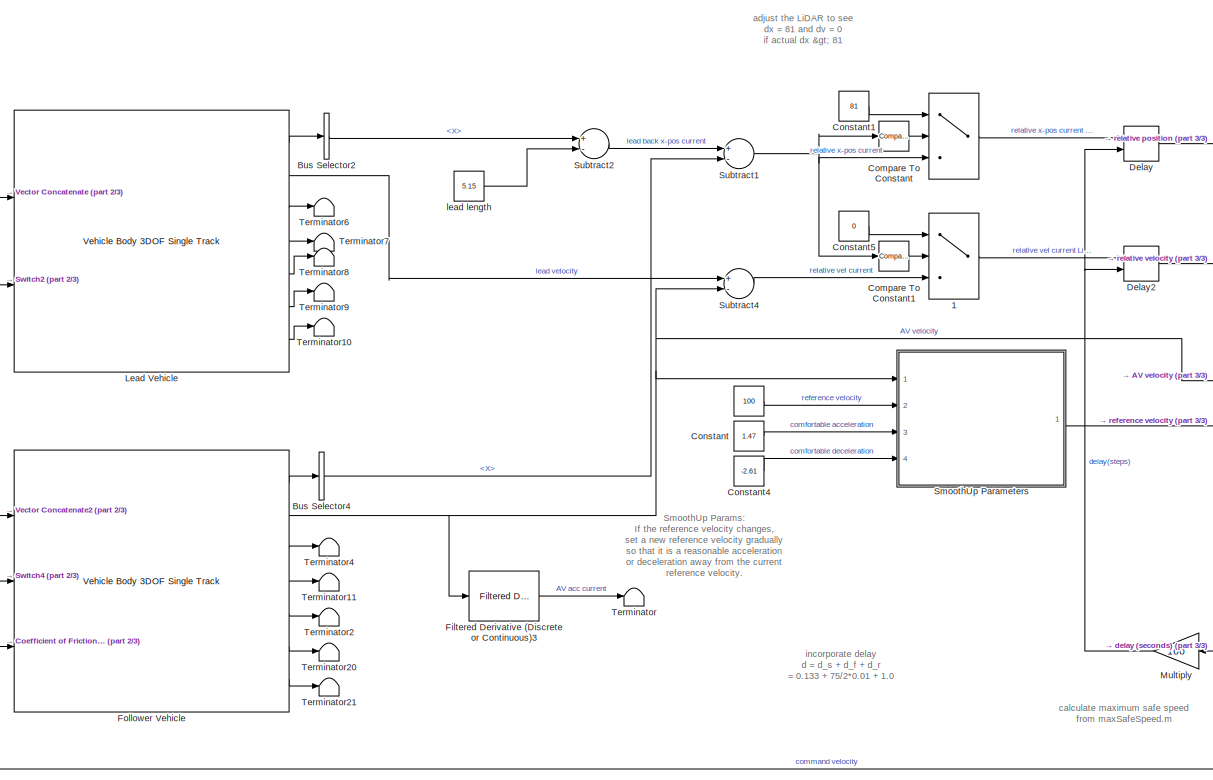
[diagram: root canvas - part 1/3, center side, full height]
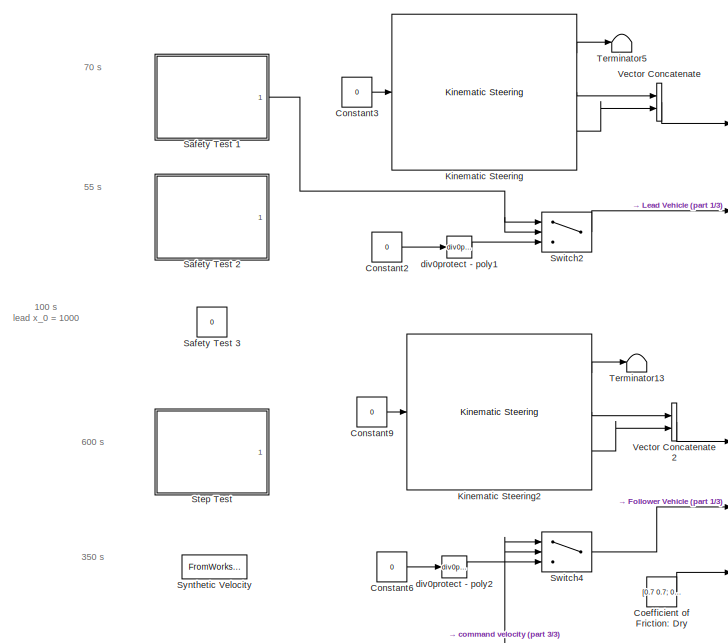
[diagram: root canvas - part 2/3, left side, full height]
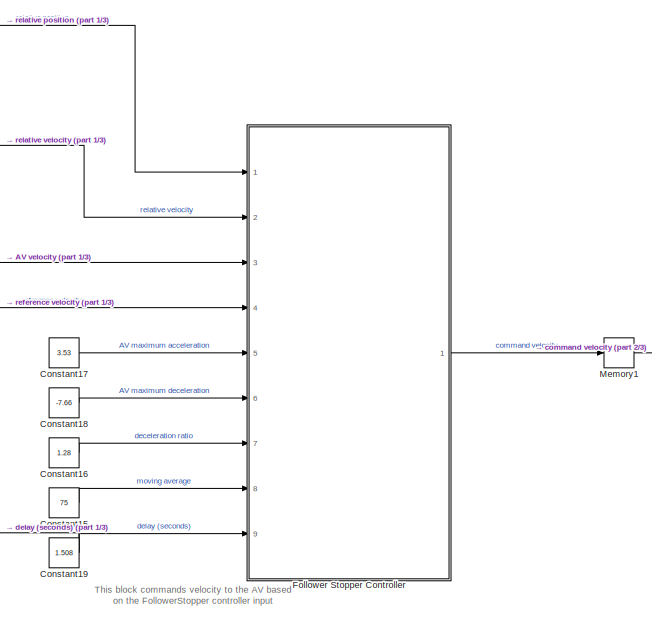
[diagram: root canvas - part 3/3, right side, full height]
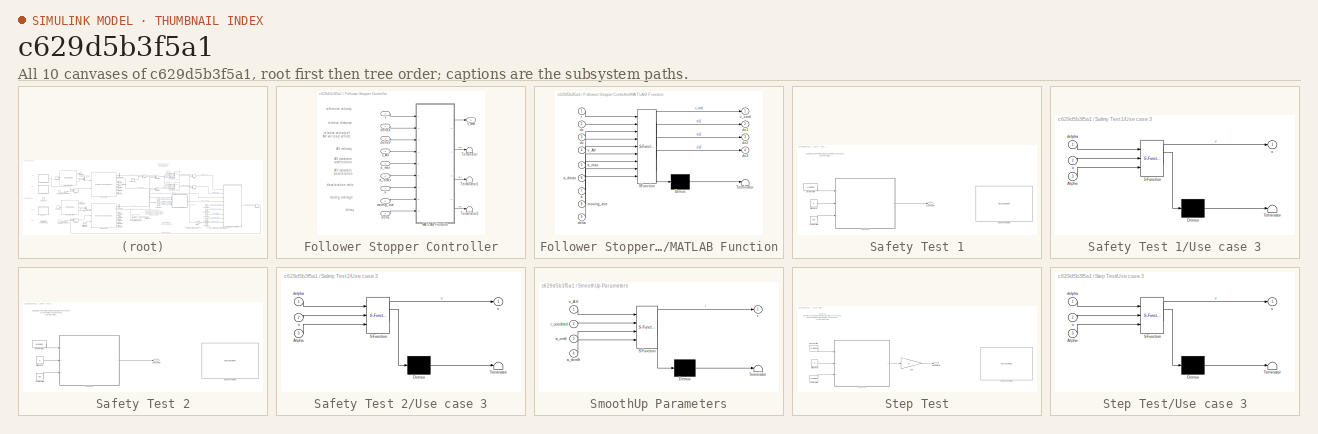
[diagram: thumbnail index - all 10 canvases of the model, root first then tree order]
MODEL slx_c629d5b3f5a1
KIND model
CONFIG AbsTol = auto
CONFIG EnableMultiTasking = off
CONFIG FixedStep = 0.01
CONFIG MaxStep = auto
CONFIG MinStep = auto
CONFIG RelTol = 1e-3
CONFIG SampleTimeConstraint = Unconstrained
CONFIG Solver = FixedStepAuto
CONFIG SolverName = FixedStepAuto
CONFIG StartTime = 0.0
CONFIG StopTime = 70
BLOCK [Switch]  
  Criteria = u2 > Threshold
  InputSameDT = off
  SaturateOnIntegerOverflow = off
BLOCK [Constant]   
  Value = 100
BLOCK [Switch]  1
  Criteria = u2 > Threshold
  InputSameDT = off
  SaturateOnIntegerOverflow = off
BLOCK [BusSelector] Bus Selector2
  OutputAsBus = off
  OutputSignals = InertFrm.Geom.Disp.X
  Ports = [1, 1]
BLOCK [BusSelector] Bus Selector4
  OutputAsBus = off
  OutputSignals = InertFrm.Geom.Disp.X
  Ports = [1, 1]
BLOCK [Constant] Coefficient of Friction: Dry
  Value = [0.7 0.7; 0.7 0.7]
BLOCK [Reference] Compare To Constant  REF=simulink/Logic and Bit
Operations/Compare
To Constant
  Ports = [1, 1]
  SourceBlock = simulink/Logic and Bit\nOperations/Compare\nTo Constant
  SourceProductBaseCode = SL
  SourceProductName = Simulink
  SourceType = Compare To Constant
BLOCK [Reference] Compare To Constant1  REF=simulink/Logic and Bit
Operations/Compare
To Constant
  Ports = [1, 1]
  SourceBlock = simulink/Logic and Bit\nOperations/Compare\nTo Constant
  SourceProductBaseCode = SL
  SourceProductName = Simulink
  SourceType = Compare To Constant
BLOCK [Constant] Constant
  Value = 1.47
BLOCK [Constant] Constant1
  Value = 81
BLOCK [Constant] Constant15
  Value = 75
BLOCK [Constant] Constant16
  Value = 1.28
BLOCK [Constant] Constant17
  Value = 3.53
BLOCK [Constant] Constant18
  Value = -7.66
BLOCK [Constant] Constant19
  Value = 1.508
BLOCK [Constant] Constant2
  Value = 0
BLOCK [Constant] Constant3
  Value = 0
BLOCK [Constant] Constant4
  Value = -2.61
BLOCK [Constant] Constant5
  Value = 0
BLOCK [Constant] Constant6
  Value = 0
BLOCK [Constant] Constant9
  Value = 0
BLOCK [Delay] Delay
  DelayLength = 183
  DelayLengthSource = Input port
  InputPortMap = u0,p1
  Ports = [2, 1]
BLOCK [Delay] Delay2
  DelayLength = 183
  DelayLengthSource = Input port
  InputPortMap = u0,p1
  Ports = [2, 1]
BLOCK [Reference] Filtered Derivative (Discrete or Continuous)3  REF=eeGeneralControl/Filtered Derivative
(Discrete or Continuous)
  Ports = [1, 1]
  SourceBlock = eeGeneralControl/Filtered Derivative\n(Discrete or Continuous)
  SourceProductBaseCode = PS
  SourceProductName = Simscape Electrical
  SourceType = Filtered Derivative (Discrete or Continuous)
BLOCK [SubSystem] Follower Stopper Controller
  Ports = [9, 1]
  RequestExecContextInheritance = off
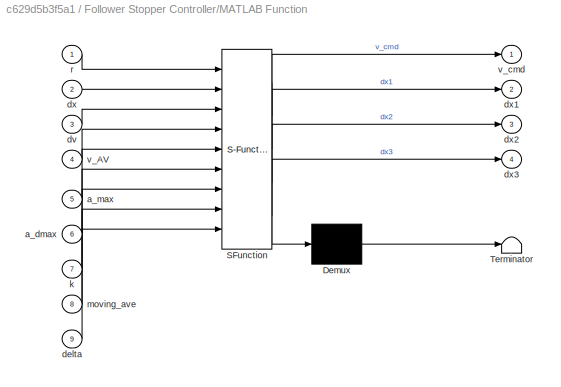
BLOCK [SubSystem] Follower Stopper Controller/MATLAB Function
  ErrorFcn = Stateflow.Translate.translate
  PermitHierarchicalResolution = ExplicitOnly
  Ports = [9, 4]
  RequestExecContextInheritance = off
  SFBlockType = MATLAB Function
  TreatAsAtomicUnit = on
BLOCK [Demux] Follower Stopper Controller/MATLAB Function/ Demux 
  Outputs = 1
  Ports = [1, 1]
BLOCK [S-Function] Follower Stopper Controller/MATLAB Function/ SFunction 
  EnableBusSupport = on
  FunctionName = sf_sfun
  PortCounts = [9 5]
  Ports = [9, 5]
  SFcnIsStateOwnerBlock = off
  SFunctionDeploymentMode = off
  Tag = Stateflow S-Function newFS_safetyTests 5
BLOCK [Terminator] Follower Stopper Controller/MATLAB Function/ Terminator 
BLOCK [Inport] Follower Stopper Controller/MATLAB Function/a_dmax
  IconDisplay = Port number
  Port = 6
BLOCK [Inport] Follower Stopper Controller/MATLAB Function/a_max
  IconDisplay = Port number
  Port = 5
BLOCK [Inport] Follower Stopper Controller/MATLAB Function/delta
  IconDisplay = Port number
  Port = 9
BLOCK [Inport] Follower Stopper Controller/MATLAB Function/dv
  IconDisplay = Port number
  Port = 3
BLOCK [Inport] Follower Stopper Controller/MATLAB Function/dx
  IconDisplay = Port number
  Port = 2
BLOCK [Outport] Follower Stopper Controller/MATLAB Function/dx1
  IconDisplay = Port number
  Port = 2
BLOCK [Outport] Follower Stopper Controller/MATLAB Function/dx2
  IconDisplay = Port number
  Port = 3
BLOCK [Outport] Follower Stopper Controller/MATLAB Function/dx3
  IconDisplay = Port number
  Port = 4
BLOCK [Inport] Follower Stopper Controller/MATLAB Function/k
  IconDisplay = Port number
  Port = 7
BLOCK [Inport] Follower Stopper Controller/MATLAB Function/moving_ave
  IconDisplay = Port number
  Port = 8
BLOCK [Inport] Follower Stopper Controller/MATLAB Function/r
  IconDisplay = Port number
BLOCK [Inport] Follower Stopper Controller/MATLAB Function/v_AV
  IconDisplay = Port number
  Port = 4
BLOCK [Outport] Follower Stopper Controller/MATLAB Function/v_cmd
  IconDisplay = Port number
BLOCK [Terminator] Follower Stopper Controller/Terminator
BLOCK [Terminator] Follower Stopper Controller/Terminator1
BLOCK [Terminator] Follower Stopper Controller/Terminator2
BLOCK [Inport] Follower Stopper Controller/a_dmax
  IconDisplay = Port number
  Port = 6
BLOCK [Inport] Follower Stopper Controller/a_max
  IconDisplay = Port number
  Port = 5
BLOCK [Inport] Follower Stopper Controller/delta
  IconDisplay = Port number
  Port = 9
BLOCK [Inport] Follower Stopper Controller/deltaV
  IconDisplay = Port number
  Port = 2
BLOCK [Inport] Follower Stopper Controller/deltaX
  IconDisplay = Port number
BLOCK [Inport] Follower Stopper Controller/k
  IconDisplay = Port number
  Port = 7
BLOCK [Inport] Follower Stopper Controller/moving_ave
  IconDisplay = Port number
  Port = 8
BLOCK [Inport] Follower Stopper Controller/r
  IconDisplay = Port number
  Port = 4
BLOCK [Inport] Follower Stopper Controller/v_AV
  IconDisplay = Port number
  Port = 3
BLOCK [Outport] Follower Stopper Controller/v_cmd
  IconDisplay = Port number
BLOCK [Reference] Follower Vehicle  REF=autolibshared/Vehicle Body 3DOF Single Track
  Ports = [3, 7]
  SourceBlock = autolibshared/Vehicle Body 3DOF Single Track
  SourceProductBaseCode = PW
  SourceProductName = Powertrain Blockset
  SourceType = Vehicle Body 3DOF Lateral
BLOCK [Reference] Kinematic Steering  REF=vehdynlibsteering/Kinematic Steering
  Ports = [1, 3]
  SourceBlock = vehdynlibsteering/Kinematic Steering
  SourceProductBaseCode = VE
  SourceProductName = Vehicle Dynamics Blockset
  SourceType = Kinematic Steering
BLOCK [Reference] Kinematic Steering2  REF=vehdynlibsteering/Kinematic Steering
  Ports = [1, 3]
  SourceBlock = vehdynlibsteering/Kinematic Steering
  SourceProductBaseCode = VE
  SourceProductName = Vehicle Dynamics Blockset
  SourceType = Kinematic Steering
BLOCK [Reference] Lead Vehicle  REF=autolibshared/Vehicle Body 3DOF Single Track
  Ports = [2, 7]
  SourceBlock = autolibshared/Vehicle Body 3DOF Single Track
  SourceProductBaseCode = PW
  SourceProductName = Powertrain Blockset
  SourceType = Vehicle Body 3DOF Lateral
BLOCK [Memory] Memory1
BLOCK [Gain] Multiply
  Gain = 100
  OutDataTypeStr = Inherit: Inherit via internal rule
  ParamDataTypeStr = Inherit: Inherit via internal rule
  SaturateOnIntegerOverflow = off
BLOCK [SubSystem] Safety Test 1
  Ports = [0, 1]
  RequestExecContextInheritance = off
BLOCK [Constant] Safety Test 1/Acceleration
  Value = 3.53
BLOCK [Constant] Safety Test 1/Deceleration
  Value = -9.80665
BLOCK [Constant] Safety Test 1/Initial Velocity
  Value = 0
BLOCK [MessageViewer] Safety Test 1/Sequence Viewer
BLOCK [SubSystem] Safety Test 1/Use case 3
  ErrorFcn = Stateflow.Translate.translate
  PermitHierarchicalResolution = ExplicitOnly
  Ports = [3, 1]
  RequestExecContextInheritance = off
  SFBlockType = Chart
  TreatAsAtomicUnit = on
BLOCK [Demux] Safety Test 1/Use case 3/ Demux 
  Outputs = 1
  Ports = [1, 1]
BLOCK [S-Function] Safety Test 1/Use case 3/ SFunction 
  EnableBusSupport = on
  FunctionName = sf_sfun
  PortCounts = [3 2]
  Ports = [3, 2]
  SFcnIsStateOwnerBlock = off
  SFunctionDeploymentMode = off
  Tag = Stateflow S-Function newFS_safetyTests 10
BLOCK [Terminator] Safety Test 1/Use case 3/ Terminator 
BLOCK [Inport] Safety Test 1/Use case 3/Alpha
  IconDisplay = Port number
  Port = 3
BLOCK [Inport] Safety Test 1/Use case 3/delpha
  IconDisplay = Port number
BLOCK [Inport] Safety Test 1/Use case 3/u
  IconDisplay = Port number
  Port = 2
BLOCK [Outport] Safety Test 1/Use case 3/v
  IconDisplay = Port number
BLOCK [Outport] Safety Test 1/lead velocity
  IconDisplay = Port number
BLOCK [SubSystem] Safety Test 2
  Ports = [0, 1]
  RequestExecContextInheritance = off
BLOCK [Constant] Safety Test 2/Acceleration
  Value = 3.53
BLOCK [Constant] Safety Test 2/Deceleration
  Value = -9.80665
BLOCK [Constant] Safety Test 2/Initial Velocity
  Value = 0
BLOCK [MessageViewer] Safety Test 2/Sequence Viewer
BLOCK [SubSystem] Safety Test 2/Use case 3
  ErrorFcn = Stateflow.Translate.translate
  PermitHierarchicalResolution = ExplicitOnly
  Ports = [3, 1]
  RequestExecContextInheritance = off
  SFBlockType = Chart
  TreatAsAtomicUnit = on
BLOCK [Demux] Safety Test 2/Use case 3/ Demux 
  Outputs = 1
  Ports = [1, 1]
BLOCK [S-Function] Safety Test 2/Use case 3/ SFunction 
  EnableBusSupport = on
  FunctionName = sf_sfun
  PortCounts = [3 2]
  Ports = [3, 2]
  SFcnIsStateOwnerBlock = off
  SFunctionDeploymentMode = off
  Tag = Stateflow S-Function newFS_safetyTests 1
BLOCK [Terminator] Safety Test 2/Use case 3/ Terminator 
BLOCK [Inport] Safety Test 2/Use case 3/Alpha
  IconDisplay = Port number
  Port = 3
BLOCK [Inport] Safety Test 2/Use case 3/delpha
  IconDisplay = Port number
BLOCK [Inport] Safety Test 2/Use case 3/u
  IconDisplay = Port number
  Port = 2
BLOCK [Outport] Safety Test 2/Use case 3/v
  IconDisplay = Port number
BLOCK [Outport] Safety Test 2/lead velocity
  IconDisplay = Port number
BLOCK [Constant] Safety Test 3
  Value = 0
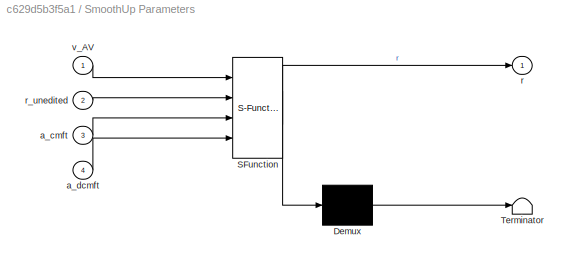
BLOCK [SubSystem] SmoothUp Parameters
  ErrorFcn = Stateflow.Translate.translate
  PermitHierarchicalResolution = ExplicitOnly
  Ports = [4, 1]
  RequestExecContextInheritance = off
  SFBlockType = MATLAB Function
  TreatAsAtomicUnit = on
BLOCK [Demux] SmoothUp Parameters/ Demux 
  Outputs = 1
  Ports = [1, 1]
BLOCK [S-Function] SmoothUp Parameters/ SFunction 
  EnableBusSupport = on
  FunctionName = sf_sfun
  PortCounts = [4 2]
  Ports = [4, 2]
  SFcnIsStateOwnerBlock = off
  SFunctionDeploymentMode = off
  Tag = Stateflow S-Function newFS_safetyTests 35
BLOCK [Terminator] SmoothUp Parameters/ Terminator 
BLOCK [Inport] SmoothUp Parameters/a_cmft
  IconDisplay = Port number
  Port = 3
BLOCK [Inport] SmoothUp Parameters/a_dcmft
  IconDisplay = Port number
  Port = 4
BLOCK [Outport] SmoothUp Parameters/r
  IconDisplay = Port number
BLOCK [Inport] SmoothUp Parameters/r_unedited
  IconDisplay = Port number
  Port = 2
BLOCK [Inport] SmoothUp Parameters/v_AV
  IconDisplay = Port number
BLOCK [SubSystem] Step Test
  Ports = [0, 1]
  RequestExecContextInheritance = off
BLOCK [Constant] Step Test/Acceleration
  Value = 9.80665
BLOCK [Constant] Step Test/Deceleration
  Value = -9.80665
BLOCK [Gain] Step Test/Gain
  OutDataTypeStr = Inherit: Inherit via internal rule
  ParamDataTypeStr = Inherit: Inherit via internal rule
  SaturateOnIntegerOverflow = off
BLOCK [Constant] Step Test/Initial Velocity
  Value = 0
BLOCK [MessageViewer] Step Test/Sequence Viewer
BLOCK [SubSystem] Step Test/Use case 3
  ErrorFcn = Stateflow.Translate.translate
  PermitHierarchicalResolution = ExplicitOnly
  Ports = [3, 1]
  RequestExecContextInheritance = off
  SFBlockType = Chart
  TreatAsAtomicUnit = on
BLOCK [Demux] Step Test/Use case 3/ Demux 
  Outputs = 1
  Ports = [1, 1]
BLOCK [S-Function] Step Test/Use case 3/ SFunction 
  EnableBusSupport = on
  FunctionName = sf_sfun
  PortCounts = [3 2]
  Ports = [3, 2]
  SFcnIsStateOwnerBlock = off
  SFunctionDeploymentMode = off
  Tag = Stateflow S-Function newFS_safetyTests 21
BLOCK [Terminator] Step Test/Use case 3/ Terminator 
BLOCK [Inport] Step Test/Use case 3/Alpha
  IconDisplay = Port number
  Port = 3
BLOCK [Inport] Step Test/Use case 3/delpha
  IconDisplay = Port number
BLOCK [Inport] Step Test/Use case 3/u
  IconDisplay = Port number
  Port = 2
BLOCK [Outport] Step Test/Use case 3/v
  IconDisplay = Port number
BLOCK [Outport] Step Test/lead velocity
  IconDisplay = Port number
BLOCK [Sum] Subtract1
  InputSameDT = off
  Inputs = +-
  OutDataTypeStr = Inherit: Inherit via internal rule
  Ports = [2, 1]
  SaturateOnIntegerOverflow = off
BLOCK [Sum] Subtract2
  InputSameDT = off
  Inputs = +-
  OutDataTypeStr = Inherit: Inherit via internal rule
  Ports = [2, 1]
  SaturateOnIntegerOverflow = off
BLOCK [Sum] Subtract4
  InputSameDT = off
  Inputs = +-
  OutDataTypeStr = Inherit: Inherit via internal rule
  Ports = [2, 1]
  SaturateOnIntegerOverflow = off
BLOCK [Switch] Switch2
  Criteria = u2 > Threshold
  InputSameDT = off
  SaturateOnIntegerOverflow = off
BLOCK [Switch] Switch4
  Criteria = u2 > Threshold
  InputSameDT = off
  SaturateOnIntegerOverflow = off
BLOCK [FromWorkspace] Synthetic Velocity
  VariableName = vel_car_1
  ZeroCross = on
BLOCK [Terminator] Terminator
BLOCK [Terminator] Terminator10
BLOCK [Terminator] Terminator11
BLOCK [Terminator] Terminator13
BLOCK [Terminator] Terminator2
BLOCK [Terminator] Terminator20
BLOCK [Terminator] Terminator21
BLOCK [Terminator] Terminator4
BLOCK [Terminator] Terminator5
BLOCK [Terminator] Terminator6
BLOCK [Terminator] Terminator7
BLOCK [Terminator] Terminator8
BLOCK [Terminator] Terminator9
BLOCK [Concatenate] Vector Concatenate
  Ports = [2, 1]
BLOCK [Concatenate] Vector Concatenate2
  Ports = [2, 1]
BLOCK [Reference] div0protect - poly1  REF=autolibutils/div0protect - poly
  Ports = [1, 1]
  SourceBlock = autolibutils/div0protect - poly
  SourceProductBaseCode = PW
  SourceProductName = Powertrain Blockset
BLOCK [Reference] div0protect - poly2  REF=autolibutils/div0protect - poly
  Ports = [1, 1]
  SourceBlock = autolibutils/div0protect - poly
  SourceProductBaseCode = PW
  SourceProductName = Powertrain Blockset
BLOCK [Constant] lead length
  Value = 5.15
ANNOTATION (root): 350 s
ANNOTATION (root): 55 s
ANNOTATION (root): 600 s
ANNOTATION (root): 70 s
ANNOTATION (root): 100 s lead x_0 = 1000
ANNOTATION (root): SmoothUp Params: If the reference velocity changes, set a new reference velocity gradually so that it is a reasonable acceleration or deceleration away from the current reference velocity.
ANNOTATION (root): adjust the LiDAR to see dx = 81 and dv = 0 if actual dx > 81
ANNOTATION (root): calculate maximum safe speed from maxSafeSpeed.m
ANNOTATION (root): incorporate delay d = d_s + d_f + d_r = 0.133 + 75/2*0.01 + 1.0
ANNOTATION (root): This block commands velocity to the AV based on the FollowerStopper controller input
ANNOTATION Follower Stopper Controller: AV maximum acceleration
ANNOTATION Follower Stopper Controller: AV maximum deceleration
ANNOTATION Follower Stopper Controller: AV velocity
ANNOTATION Follower Stopper Controller: deceleration ratio
ANNOTATION Follower Stopper Controller: delay
ANNOTATION Follower Stopper Controller: moving average
ANNOTATION Follower Stopper Controller: reference velocity
ANNOTATION Follower Stopper Controller: relative distance
ANNOTATION Follower Stopper Controller: relative velocity of AV wrt lead vehicle
ANNOTATION Safety Test 1: 1. Start at 0. Accelerate to 12 m/s. Stay at 12 m/s for 40 seconds. 2. Decelerate to 0.
ANNOTATION Safety Test 2: 1. Start at 0. Accelerate to 10 m/s. Stay at 10 m/s for 25 seconds. 2. Accelerate for 1.508 seconds. 3. Decelerate to 0.
ANNOTATION Step Test: Use case 3: Start at 0. Accelerate to 10 m/s. Stay at 10 m/s for 175 seconds. Decelerate to 2 m/s. Stay at 2 m/s for 150 seconds. Accelerate to 10 m/s.
LINE   :1 -> SmoothUp Parameters:2
LINE  1:1 -> Delay2:1
LINE  :1 -> Delay:1
LINE Bus Selector2:1 -> Subtract2:1
LINE Bus Selector4:1 -> Subtract1:2
LINE Coefficient of Friction: Dry:1 -> Follower Vehicle:3
LINE Compare To Constant1:1 ->  1:2
LINE Compare To Constant:1 ->  :2
LINE Constant15:1 -> Follower Stopper Controller:8
LINE Constant16:1 -> Follower Stopper Controller:7
LINE Constant17:1 -> Follower Stopper Controller:5
LINE Constant18:1 -> Follower Stopper Controller:6
NET Constant19:1 -> Follower Stopper Controller:9, Multiply:1
LINE Constant1:1 ->  :1
LINE Constant2:1 -> div0protect - poly1:1
LINE Constant3:1 -> Kinematic Steering:1
LINE Constant4:1 -> SmoothUp Parameters:4
LINE Constant5:1 ->  1:1
LINE Constant6:1 -> div0protect - poly2:1
LINE Constant9:1 -> Kinematic Steering2:1
LINE Constant:1 -> SmoothUp Parameters:3
LINE Delay2:1 -> Follower Stopper Controller:2
LINE Delay:1 -> Follower Stopper Controller:1
LINE Filtered Derivative (Discrete or Continuous)3:1 -> Terminator:1
LINE Follower Stopper Controller/MATLAB Function:1 -> Follower Stopper Controller/v_cmd:1
LINE Follower Stopper Controller/MATLAB Function:2 -> Follower Stopper Controller/Terminator:1
LINE Follower Stopper Controller/MATLAB Function:3 -> Follower Stopper Controller/Terminator1:1
LINE Follower Stopper Controller/MATLAB Function:4 -> Follower Stopper Controller/Terminator2:1
LINE Follower Stopper Controller/a_dmax:1 -> Follower Stopper Controller/MATLAB Function:6
LINE Follower Stopper Controller/a_max:1 -> Follower Stopper Controller/MATLAB Function:5
LINE Follower Stopper Controller/delta:1 -> Follower Stopper Controller/MATLAB Function:9
LINE Follower Stopper Controller/deltaV:1 -> Follower Stopper Controller/MATLAB Function:3
LINE Follower Stopper Controller/deltaX:1 -> Follower Stopper Controller/MATLAB Function:2
LINE Follower Stopper Controller/k:1 -> Follower Stopper Controller/MATLAB Function:7
LINE Follower Stopper Controller/moving_ave:1 -> Follower Stopper Controller/MATLAB Function:8
LINE Follower Stopper Controller/r:1 -> Follower Stopper Controller/MATLAB Function:1
LINE Follower Stopper Controller/v_AV:1 -> Follower Stopper Controller/MATLAB Function:4
LINE Follower Stopper Controller:1 -> Memory1:1
LINE Follower Vehicle:1 -> Bus Selector4:1
NET Follower Vehicle:2 -> Filtered Derivative (Discrete or Continuous)3:1, Follower Stopper Controller:3, SmoothUp Parameters:1, Subtract4:2
LINE Follower Vehicle:3 -> Terminator4:1
LINE Follower Vehicle:4 -> Terminator11:1
LINE Follower Vehicle:5 -> Terminator2:1
LINE Follower Vehicle:6 -> Terminator20:1
LINE Follower Vehicle:7 -> Terminator21:1
LINE Kinematic Steering2:1 -> Terminator13:1
LINE Kinematic Steering2:2 -> Vector Concatenate2:1
LINE Kinematic Steering2:3 -> Vector Concatenate2:2
LINE Kinematic Steering:1 -> Terminator5:1
LINE Kinematic Steering:2 -> Vector Concatenate:1
LINE Kinematic Steering:3 -> Vector Concatenate:2
LINE Lead Vehicle:1 -> Bus Selector2:1
LINE Lead Vehicle:2 -> Subtract4:1
LINE Lead Vehicle:3 -> Terminator6:1
LINE Lead Vehicle:4 -> Terminator7:1
LINE Lead Vehicle:5 -> Terminator8:1
LINE Lead Vehicle:6 -> Terminator9:1
LINE Lead Vehicle:7 -> Terminator10:1
NET Memory1:1 -> Switch4:1, Switch4:2
NET Multiply:1 -> Delay2:2, Delay:2
LINE Safety Test 1/Acceleration:1 -> Safety Test 1/Use case 3:3
LINE Safety Test 1/Deceleration:1 -> Safety Test 1/Use case 3:1
LINE Safety Test 1/Initial Velocity:1 -> Safety Test 1/Use case 3:2
LINE Safety Test 1/Use case 3:1 -> Safety Test 1/lead velocity:1
NET Safety Test 1:1 -> Switch2:1, Switch2:2
LINE Safety Test 2/Acceleration:1 -> Safety Test 2/Use case 3:3
LINE Safety Test 2/Deceleration:1 -> Safety Test 2/Use case 3:1
LINE Safety Test 2/Initial Velocity:1 -> Safety Test 2/Use case 3:2
LINE Safety Test 2/Use case 3:1 -> Safety Test 2/lead velocity:1
LINE SmoothUp Parameters:1 -> Follower Stopper Controller:4
LINE Step Test/Acceleration:1 -> Step Test/Use case 3:3
LINE Step Test/Deceleration:1 -> Step Test/Use case 3:1
LINE Step Test/Gain:1 -> Step Test/lead velocity:1
LINE Step Test/Initial Velocity:1 -> Step Test/Use case 3:2
LINE Step Test/Use case 3:1 -> Step Test/Gain:1
NET Subtract1:1 ->  :3, Compare To Constant1:1, Compare To Constant:1
LINE Subtract2:1 -> Subtract1:1
LINE Subtract4:1 ->  1:3
LINE Switch2:1 -> Lead Vehicle:2
LINE Switch4:1 -> Follower Vehicle:2
LINE Vector Concatenate2:1 -> Follower Vehicle:1
LINE Vector Concatenate:1 -> Lead Vehicle:1
LINE div0protect - poly1:1 -> Switch2:3
LINE div0protect - poly2:1 -> Switch4:3
LINE lead length:1 -> Subtract2:2
note: NET lines group one-source signal fan-out (src -> all destinations, sorted); 1:1 wires keep LINE
CHART Safety Test 2/Use case 3 states=13 transitions=6
  STATE_LABEL 'new_vel = getNewVdecel(init_velocity, deceleration)'
  STATE_LABEL 'SCRIPT:\nfunction new_vel = getNewVdecel(init_velocity, deceleration)\n\nnew_vel = init_velocity - abs(deceleration*0.01);\nnew_vel = max(new_vel,0);\n\nend\n'
  STATE_LABEL 'new_vel = getNewVaccel(init_velocity, acceleration)'
  STATE_LABEL 'SCRIPT:\nfunction new_vel = getNewVaccel(init_velocity, acceleration)\n\nnew_vel = init_velocity + (acceleration*0.01);\n\nend\n'
  STATE_LABEL 'Hold\nentry: u2 = v;\nduring: v = u2;\nexit:'
  STATE_LABEL 'HOLD STATE'
  STATE_LABEL 'HOLD STATE'
  STATE_LABEL 'Accelerate\nentry: entryState = 1; v = 0;\nduring: v = getNewVaccel(v, Alpha)\nexit:  nextState = entryState + 1;'
  STATE_LABEL 'STATE 1'
  STATE_LABEL 'STATE 1'
  STATE_LABEL 'Accelerate1\nentry: entryState = nextState; v = u2;\nduring: v = getNewVaccel(v, Alpha);\nexit: nextState = entryState + 1;'
  STATE_LABEL 'STATE 2'
  STATE_LABEL 'STATE 2'
  STATE_LABEL 'Decelerate\nentry: entryState = nextState; v = u2;\nduring: v = getNewVdecel(v,delpha);\nexit: nextState = entryState + 1;'
  STATE_LABEL 'STATE 3'
  STATE_LABEL 'STATE 3'
  STATE_LABEL 'Hold1\nentry:\nduring: v = 0;\nexit:'
  STATE_LABEL 'zero\nentry: v = 0;\nduring:v = 0;'
  STATE_LABEL 'STATE 4'
  STATE_LABEL 'STATE 4'
CHART Follower Stopper Controller/MATLAB Function states=1 transitions=1
  STATE_LABEL 'eML_blk_kernel()'
  STATE_LABEL 'SCRIPT:\nfunction [v_cmd, dx1, dx2, dx3] = fcn(r,dx,dv,v_AV,...\n    a_max, a_dmax, k, moving_ave, delta)\n\n%#codegen\n% Safety controller, based on quadratic bands.\n% Input: r = desired velocity (from other models)\n%          dx = estimate of gap to vehicle ahead\n%          dv = estimate of time derivative of dx (= velocity difference)\n%        v_AV = velocity of AV\n%      a_cmft = comfortable accele...<+1411ch>'
CHART Safety Test 1/Use case 3 states=11 transitions=5
  STATE_LABEL 'new_vel = getNewVdecel(init_velocity, deceleration)'
  STATE_LABEL 'SCRIPT:\nfunction new_vel = getNewVdecel(init_velocity, deceleration)\n\nnew_vel = init_velocity - abs(deceleration*0.01);\nnew_vel = max(new_vel,0);\n\nend\n'
  STATE_LABEL 'zero\nentry: v = 0;\nduring:v = 0;'
  STATE_LABEL 'STATE 4'
  STATE_LABEL 'STATE 4'
  STATE_LABEL 'new_vel = getNewVaccel(init_velocity, acceleration)'
  STATE_LABEL 'SCRIPT:\nfunction new_vel = getNewVaccel(init_velocity, acceleration)\n\nnew_vel = init_velocity + (acceleration*0.01);\n\nend\n'
  STATE_LABEL 'Hold\nentry: u2 = v;\nduring: v = u2;\nexit:'
  STATE_LABEL 'HOLD STATE'
  STATE_LABEL 'HOLD STATE'
  STATE_LABEL 'AccelerateTo60_init\nentry: entryState = 1; v = 0;\nduring: v = getNewVaccel(v, Alpha)\nexit:  nextState = entryState + 1;'
  STATE_LABEL 'STATE 1'
  STATE_LABEL 'STATE 1'
  STATE_LABEL 'Hold1\nentry:\nduring: v = 0;\nexit:'
  STATE_LABEL 'Accelerate\nentry: entryState = nextState; v = u2;\nduring: v = getNewVdecel(v,delpha);\nexit: nextState = entryState + 1;'
  STATE_LABEL 'STATE 2'
  STATE_LABEL 'STATE 2'
CHART Step Test/Use case 3 states=20 transitions=9
  STATE_LABEL '<!DOCTYPE HTML PUBLIC "-//W3C//DTD HTML 4.0//EN" "http://www.w3.org/TR/REC-html40/strict.dtd">\n<html><head><meta name="qrichtext" content="1" /><style type="text/css">\np, li { white-space: pre-wrap; }\n</style></head><body style=" font-family:\'Helvetica\'; font-size:12px; font-weight:400; font-style:normal;">\n<p style=" margin-top:0px; margin-bottom:0px; margin-left:0px; margin-right:0px; -qt-block-...<+1195ch>'
  STATE_LABEL 'new_vel = getNewVdecel(init_velocity, deceleration)'
  STATE_LABEL 'SCRIPT:\nfunction new_vel = getNewVdecel(init_velocity, deceleration)\n\nnew_vel = init_velocity - abs(deceleration*0.01);\nnew_vel = max(new_vel,0);\n\nend\n'
  STATE_LABEL 'zero\nentry: v = 0;\nduring:v = 0;'
  STATE_LABEL 'STATE 4'
  STATE_LABEL 'STATE 4'
  STATE_LABEL 'new_vel = getNewVaccel(init_velocity, acceleration)'
  STATE_LABEL 'SCRIPT:\nfunction new_vel = getNewVaccel(init_velocity, acceleration)\n\nnew_vel = init_velocity + (acceleration*0.01);\nnew_vel = min(new_vel,10);\n\nend\n'
  STATE_LABEL 'Hold\nentry: u2 = v;\nduring: v = u2;\nexit:'
  STATE_LABEL 'HOLD STATE'
  STATE_LABEL 'HOLD STATE'
  STATE_LABEL 'AccelerateTo60_init\nentry: entryState = 1; v = 0;\nduring: v = getNewVaccel(v, Alpha)\nexit:  nextState = entryState + 1;'
  STATE_LABEL 'STATE 1'
  STATE_LABEL 'STATE 1'
  STATE_LABEL 'Hold1\nentry: u2 = v;\nduring: v = u2;\nexit:'
  STATE_LABEL 'HOLD STATE'
  STATE_LABEL 'HOLD STATE'
  STATE_LABEL 'Accelerate\nentry: entryState = nextState; v = u2;\nduring: v = getNewVdecel(v,delpha);\nexit: nextState = entryState + 1;'
  STATE_LABEL 'STATE 2'
  STATE_LABEL 'STATE 2'
  STATE_LABEL 'Hold2\nentry: u2 = v;\nduring: v = u2;\nexit:'
  STATE_LABEL 'HOLD STATE'
  STATE_LABEL 'HOLD STATE'
  STATE_LABEL 'AccelerateTo60_init1\nentry: entryState = 1; v = 3;\nduring: v = getNewVaccel(v, Alpha)\nexit:  nextState = entryState + 1;'
  STATE_LABEL 'STATE 1'
  STATE_LABEL 'STATE 1'
  STATE_LABEL 'Accelerate1\nentry: entryState = nextState; v = u2;\nduring: v = getNewVdecel(v,delpha);\nexit: nextState = entryState + 1;'
  STATE_LABEL 'STATE 2'
  STATE_LABEL 'STATE 2'
  STATE_LABEL 'Hold3\nentry:\nduring: v = 0;\nexit:'
CHART SmoothUp Parameters states=1 transitions=1
  STATE_LABEL 'eML_blk_kernel()'
  STATE_LABEL 'SCRIPT:\nfunction r = fcn(v_AV,r_unedited,a_cmft,a_dcmft)\n% #codegen\npersistent y\n\nif isempty(y)\n    y=v_AV;\nend\n\ndt=0.01;\nif( y > r_unedited + a_cmft*dt)\n    y = max(r_unedited,y - abs(a_dcmft)*dt);\nelseif( y < r_unedited - abs(a_dcmft)*dt)\n    y = min(r_unedited,y + a_cmft*dt);\nelse\n    y = r_unedited;\nend\n\nr = y;'
